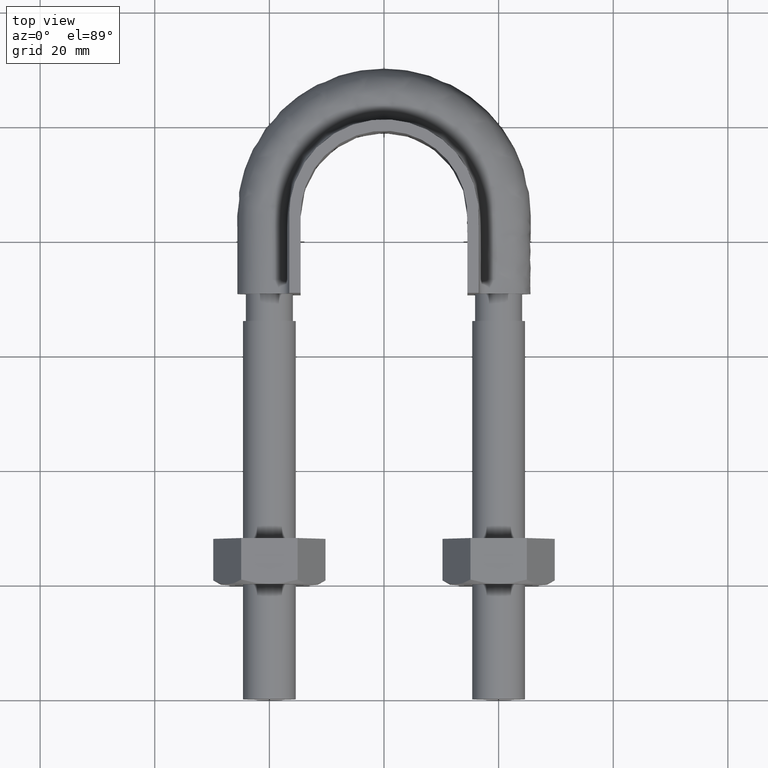
[diagram: clean part render]
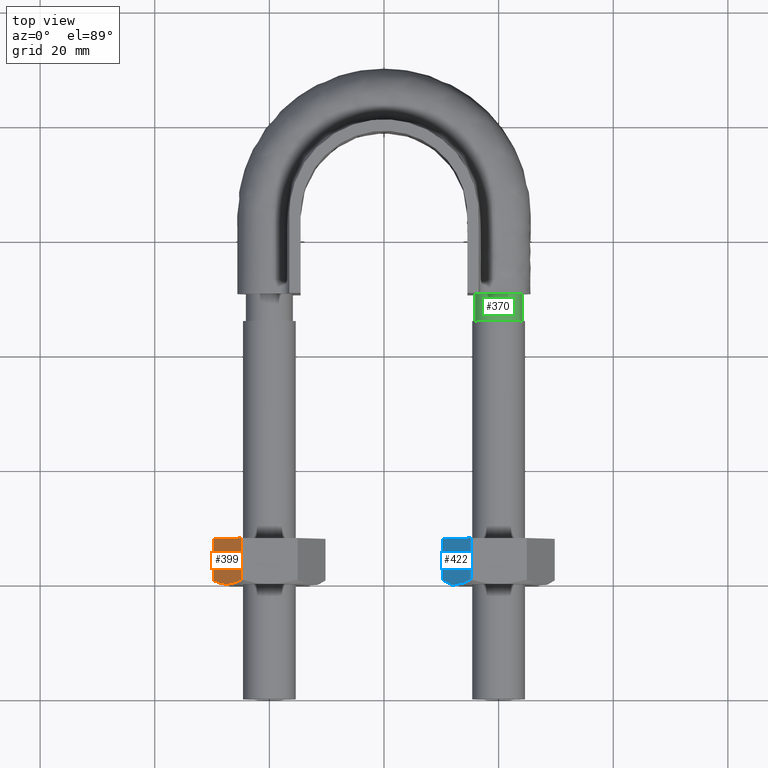
[diagram: same view with three faces highlighted in distinct colors, each labeled with its STEP entity id]
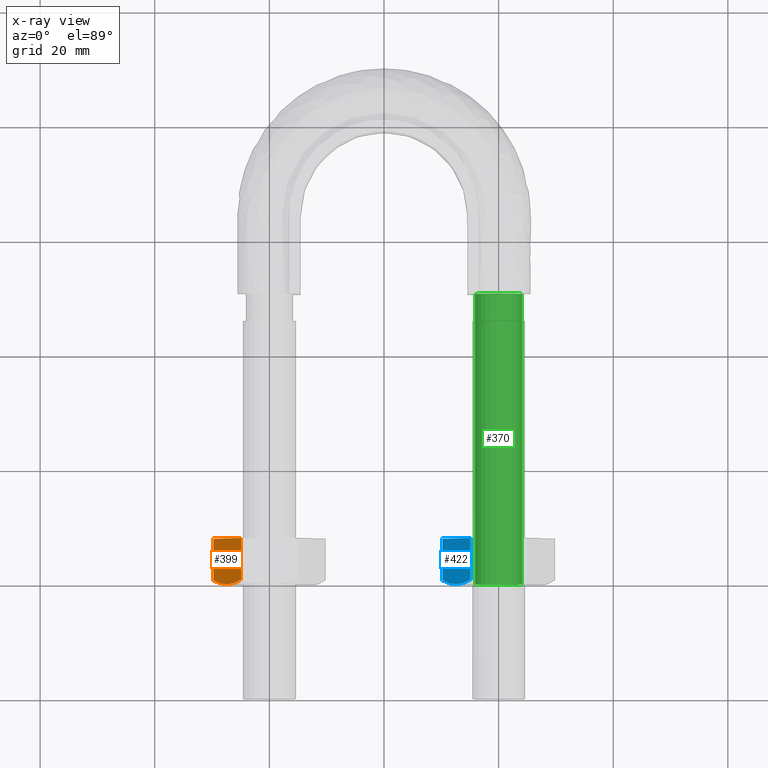
[diagram: x-ray of the same camera — body ghosted, the three highlighted faces saturated]
A machine part, top view with three faces highlighted in distinct colors.
The next image is the same camera in x-ray (body ghosted, the three faces saturated) — at least one of them is partly hidden behind the body in this view.
Their STEP definitions:

[orange] entity #399 — the highlighted planar face has unit normal (0.866, -0, -0.5).
#399 = ADVANCED_FACE( '', ( #519 ), #520, .F. );
#519 = FACE_OUTER_BOUND( '', #1497, .T. );
#520 = PLANE( '', #1498 );
#1497 = EDGE_LOOP( '', ( #1815, #1816, #1817, #1818, #1819 ) );
#1498 = AXIS2_PLACEMENT_3D( '', #1820, #1821, #1822 );
#1815 = ORIENTED_EDGE( '', *, *, #2157, .F. );
#1816 = ORIENTED_EDGE( '', *, *, #2152, .F. );
#1817 = ORIENTED_EDGE( '', *, *, #2158, .F. );
#1818 = ORIENTED_EDGE( '', *, *, #2144, .F. );
#1819 = ORIENTED_EDGE( '', *, *, #2159, .F. );
#1820 = CARTESIAN_POINT( '', ( -29.8149545762236, 28.0000000000000, 1.75302399549673E-015 ) );
#1821 = DIRECTION( '', ( 0.866025403784439, -3.93600925972846E-016, -0.500000000000000 ) );
#1822 = DIRECTION( '', ( -0.500000000000000, 2.97948281366776E-016, -0.866025403784439 ) );
#2144 = EDGE_CURVE( '', #2329, #2331, #2332, .T. );
#2152 = EDGE_CURVE( '', #2343, #2292, #2345, .T. );
#2157 = EDGE_CURVE( '', #2292, #2350, #2351, .T. );
#2158 = EDGE_CURVE( '', #2331, #2343, #2352, .F. );
#2159 = EDGE_CURVE( '', #2350, #2329, #2353, .T. );
#2292 = VERTEX_POINT( '', #2711 );
#2329 = VERTEX_POINT( '', #2766 );
#2331 = VERTEX_POINT( '', #2768 );
#2332 = LINE( '', #2769, #2770 );
#2343 = VERTEX_POINT( '', #2791 );
#2345 = B_SPLINE_CURVE_WITH_KNOTS( '', 3, ( #2793, #2794, #2795, #2796, #2797, #2798 ), .UNSPECIFIED., .F., .F., ( 4, 2, 4 ), ( 4.83064900410520E-007, 0.00246777364959070, 0.00493506423428099 ), .UNSPECIFIED. );
#2350 = VERTEX_POINT( '', #2815 );
#2351 = B_SPLINE_CURVE_WITH_KNOTS( '', 3, ( #2816, #2817, #2818, #2819, #2820, #2821, #2822, #2823 ), .UNSPECIFIED., .F., .F., ( 4, 2, 2, 4 ), ( 0.00493506423428099, 0.00616384870526321, 0.00739263317624543, 0.00985020211820987 ), .UNSPECIFIED. );
#2352 = LINE( '', #2824, #2825 );
#2353 = LINE( '', #2826, #2827 );
#2711 = CARTESIAN_POINT( '', ( -27.3612159321677, 20.0000000000000, 4.25000000000000 ) );
#2766 = CARTESIAN_POINT( '', ( -29.7999656118192, 28.0000000000000, 0.0259616479013824 ) );
#2768 = CARTESIAN_POINT( '', ( -24.9224662525163, 28.0000000000000, 8.47403835209862 ) );
#2769 = CARTESIAN_POINT( '', ( -24.9112159321677, 28.0000000000000, 8.49352447854375 ) );
#2770 = VECTOR( '', #3134, 999.999999999999 );
#2791 = CARTESIAN_POINT( '', ( -24.9224662525163, 20.7505553499465, 8.47403835209862 ) );
#2793 = CARTESIAN_POINT( '', ( -24.9224662525163, 20.7505553499465, 8.47403835209862 ) );
#2794 = CARTESIAN_POINT( '', ( -25.3215186167971, 20.5212203171278, 7.78285938228368 ) );
#2795 = CARTESIAN_POINT( '', ( -25.7234530850391, 20.3324525365441, 7.08668846197546 ) );
#2796 = CARTESIAN_POINT( '', ( -26.5355986234398, 20.0714148540586, 5.68001112632513 ) );
#2797 = CARTESIAN_POINT( '', ( -26.9458704405468, 20.0000000000000, 4.96939949418210 ) );
#2798 = CARTESIAN_POINT( '', ( -27.3612159321677, 20.0000000000000, 4.25000000000000 ) );
#2815 = CARTESIAN_POINT( '', ( -29.7999656118192, 20.7505553499465, 0.0259616479013820 ) );
#2816 = CARTESIAN_POINT( '', ( -27.3612159321677, 20.0000000000000, 4.25000000000000 ) );
#2817 = CARTESIAN_POINT( '', ( -27.5680704037744, 20.0000000000000, 3.89171754540441 ) );
#2818 = CARTESIAN_POINT( '', ( -27.7759593948815, 20.0177112081764, 3.53164325047276 ) );
#2819 = CARTESIAN_POINT( '', ( -28.1872159206789, 20.0863021936213, 2.81932605284736 ) );
#2820 = CARTESIAN_POINT( '', ( -28.3914770990592, 20.1371116504194, 2.46553531387868 ) );
#2821 = CARTESIAN_POINT( '', ( -29.0006504950013, 20.3331494013913, 1.41041604148788 ) );
#2822 = CARTESIAN_POINT( '', ( -29.4019659647123, 20.5218253127355, 0.715317258084882 ) );
#2823 = CARTESIAN_POINT( '', ( -29.7999656118192, 20.7505553499465, 0.0259616479013825 ) );
#2824 = CARTESIAN_POINT( '', ( -24.9224662525163, 28.0000000000000, 8.47403835209862 ) );
#2825 = VECTOR( '', #3149, 1000.00000000000 );
#2826 = CARTESIAN_POINT( '', ( -29.7999656118192, 28.0000000000000, 0.0259616479013842 ) );
#2827 = VECTOR( '', #3150, 1000.00000000000 );
#3134 = DIRECTION( '', ( 0.500000000000000, -2.97948281366776E-016, 0.866025403784439 ) );
#3149 = DIRECTION( '', ( 4.89842541528951E-016, 1.00000000000000, 6.12303176911189E-017 ) );
#3150 = DIRECTION( '', ( 4.89842541528951E-016, 1.00000000000000, 6.12303176911189E-017 ) );

[blue] entity #422 — the highlighted planar face has unit normal (0.866, -0, -0.5).
#422 = ADVANCED_FACE( '', ( #570 ), #571, .F. );
#570 = FACE_OUTER_BOUND( '', #1548, .T. );
#571 = PLANE( '', #1549 );
#1548 = EDGE_LOOP( '', ( #1988, #1989, #1990, #1991, #1992 ) );
#1549 = AXIS2_PLACEMENT_3D( '', #1993, #1994, #1995 );
#1988 = ORIENTED_EDGE( '', *, *, #2209, .F. );
#1989 = ORIENTED_EDGE( '', *, *, #2204, .F. );
#1990 = ORIENTED_EDGE( '', *, *, #2210, .F. );
#1991 = ORIENTED_EDGE( '', *, *, #2196, .F. );
#1992 = ORIENTED_EDGE( '', *, *, #2211, .F. );
#1993 = CARTESIAN_POINT( '', ( 10.1850454237764, 28.0000000000000, 1.75302399549673E-015 ) );
#1994 = DIRECTION( '', ( 0.866025403784439, -3.93600925972846E-016, -0.500000000000000 ) );
#1995 = DIRECTION( '', ( -0.500000000000000, 2.97948281366776E-016, -0.866025403784439 ) );
#2196 = EDGE_CURVE( '', #2415, #2417, #2418, .T. );
#2204 = EDGE_CURVE( '', #2429, #2378, #2431, .T. );
#2209 = EDGE_CURVE( '', #2378, #2436, #2437, .T. );
#2210 = EDGE_CURVE( '', #2417, #2429, #2438, .F. );
#2211 = EDGE_CURVE( '', #2436, #2415, #2439, .T. );
#2378 = VERTEX_POINT( '', #2883 );
#2415 = VERTEX_POINT( '', #2938 );
#2417 = VERTEX_POINT( '', #2940 );
#2418 = LINE( '', #2941, #2942 );
#2429 = VERTEX_POINT( '', #2963 );
#2431 = B_SPLINE_CURVE_WITH_KNOTS( '', 3, ( #2965, #2966, #2967, #2968, #2969, #2970 ), .UNSPECIFIED., .F., .F., ( 4, 2, 4 ), ( 4.83064900409661E-007, 0.00246777364959070, 0.00493506423428099 ), .UNSPECIFIED. );
#2436 = VERTEX_POINT( '', #2987 );
#2437 = B_SPLINE_CURVE_WITH_KNOTS( '', 3, ( #2988, #2989, #2990, #2991, #2992, #2993, #2994, #2995 ), .UNSPECIFIED., .F., .F., ( 4, 2, 2, 4 ), ( 0.00493506423428099, 0.00616384870526321, 0.00739263317624543, 0.00985020211820987 ), .UNSPECIFIED. );
#2438 = LINE( '', #2996, #2997 );
#2439 = LINE( '', #2998, #2999 );
#2883 = CARTESIAN_POINT( '', ( 12.6387840678323, 20.0000000000000, 4.25000000000000 ) );
#2938 = CARTESIAN_POINT( '', ( 10.2000343881809, 28.0000000000000, 0.0259616479013824 ) );
#2940 = CARTESIAN_POINT( '', ( 15.0775337474837, 28.0000000000000, 8.47403835209862 ) );
#2941 = CARTESIAN_POINT( '', ( 15.0887840678323, 28.0000000000000, 8.49352447854375 ) );
#2942 = VECTOR( '', #3218, 999.999999999999 );
#2963 = CARTESIAN_POINT( '', ( 15.0775337474837, 20.7505553499465, 8.47403835209862 ) );
#2965 = CARTESIAN_POINT( '', ( 15.0775337474837, 20.7505553499465, 8.47403835209862 ) );
#2966 = CARTESIAN_POINT( '', ( 14.6784813832029, 20.5212203171278, 7.78285938228369 ) );
#2967 = CARTESIAN_POINT( '', ( 14.2765469149609, 20.3324525365441, 7.08668846197546 ) );
#2968 = CARTESIAN_POINT( '', ( 13.4644013765603, 20.0714148540586, 5.68001112632513 ) );
#2969 = CARTESIAN_POINT( '', ( 13.0541295594532, 20.0000000000000, 4.96939949418210 ) );
#2970 = CARTESIAN_POINT( '', ( 12.6387840678323, 20.0000000000000, 4.25000000000000 ) );
#2987 = CARTESIAN_POINT( '', ( 10.2000343881809, 20.7505553499465, 0.0259616479013820 ) );
#2988 = CARTESIAN_POINT( '', ( 12.6387840678323, 20.0000000000000, 4.25000000000000 ) );
#2989 = CARTESIAN_POINT( '', ( 12.4319295962256, 20.0000000000000, 3.89171754540441 ) );
#2990 = CARTESIAN_POINT( '', ( 12.2240406051186, 20.0177112081764, 3.53164325047276 ) );
#2991 = CARTESIAN_POINT( '', ( 11.8127840793211, 20.0863021936213, 2.81932605284736 ) );
#2992 = CARTESIAN_POINT( '', ( 11.6085229009408, 20.1371116504194, 2.46553531387868 ) );
#2993 = CARTESIAN_POINT( '', ( 10.9993495049988, 20.3331494013913, 1.41041604148788 ) );
#2994 = CARTESIAN_POINT( '', ( 10.5980340352877, 20.5218253127355, 0.715317258084883 ) );
#2995 = CARTESIAN_POINT( '', ( 10.2000343881809, 20.7505553499465, 0.0259616479013839 ) );
#2996 = CARTESIAN_POINT( '', ( 15.0775337474837, 28.0000000000000, 8.47403835209862 ) );
#2997 = VECTOR( '', #3233, 1000.00000000000 );
#2998 = CARTESIAN_POINT( '', ( 10.2000343881809, 28.0000000000000, 0.0259616479013842 ) );
#2999 = VECTOR( '', #3234, 1000.00000000000 );
#3218 = DIRECTION( '', ( 0.500000000000000, -2.97948281366776E-016, 0.866025403784439 ) );
#3233 = DIRECTION( '', ( 4.89842541528951E-016, 1.00000000000000, 6.12303176911189E-017 ) );
#3234 = DIRECTION( '', ( 4.89842541528951E-016, 1.00000000000000, 6.12303176911189E-017 ) );

[green] entity #370 — the highlighted cylindrical surface (bore or boss wall) has radius 4.1 mm, axis along (0, 1, 0).
#370 = ADVANCED_FACE( '', ( #454, #455 ), #456, .T. );
#454 = FACE_OUTER_BOUND( '', #1273, .T. );
#455 = FACE_OUTER_BOUND( '', #1274, .T. );
#456 = CYLINDRICAL_SURFACE( '', #1275, 4.10000000000000 );
#1273 = EDGE_LOOP( '', ( #1636 ) );
#1274 = EDGE_LOOP( '', ( #1637 ) );
#1275 = AXIS2_PLACEMENT_3D( '', #1638, #1639, #1640 );
#1636 = ORIENTED_EDGE( '', *, *, #2097, .T. );
#1637 = ORIENTED_EDGE( '', *, *, #2098, .F. );
#1638 = CARTESIAN_POINT( '', ( 20.0000000000000, 70.7200000000000, 3.14417681343895E-015 ) );
#1639 = DIRECTION( '', ( 4.89842541528951E-016, 1.00000000000000, 6.12303176911189E-017 ) );
#1640 = DIRECTION( '', ( 1.00000000000000, -4.89842541528951E-016, -2.24949108273321E-032 ) );
#2097 = EDGE_CURVE( '', #2247, #2247, #2248, .T. );
#2098 = EDGE_CURVE( '', #2249, #2249, #2250, .T. );
#2247 = VERTEX_POINT( '', #2624 );
#2248 = CIRCLE( '', #2625, 4.10000000000000 );
#2249 = VERTEX_POINT( '', #2626 );
#2250 = CIRCLE( '', #2627, 4.10000000000000 );
#2624 = CARTESIAN_POINT( '', ( 24.1000000000000, 70.7200000000000, 3.14417681343895E-015 ) );
#2625 = AXIS2_PLACEMENT_3D( '', #3041, #3042, #3043 );
#2626 = CARTESIAN_POINT( '', ( 24.1000000000000, 20.0000000000000, 3.85751001454043E-017 ) );
#2627 = AXIS2_PLACEMENT_3D( '', #3044, #3045, #3046 );
#3041 = CARTESIAN_POINT( '', ( 20.0000000000000, 70.7200000000000, 3.14417681343895E-015 ) );
#3042 = DIRECTION( '', ( -4.89842541528951E-016, -1.00000000000000, -6.12303176911189E-017 ) );
#3043 = DIRECTION( '', ( 1.00000000000000, -4.89842541528951E-016, -2.24949108273320E-032 ) );
#3044 = CARTESIAN_POINT( '', ( 20.0000000000000, 20.0000000000000, 3.85751001454044E-017 ) );
#3045 = DIRECTION( '', ( -4.89842541528951E-016, -1.00000000000000, -6.12303176911189E-017 ) );
#3046 = DIRECTION( '', ( 1.00000000000000, -4.89842541528951E-016, -2.24949108273320E-032 ) );